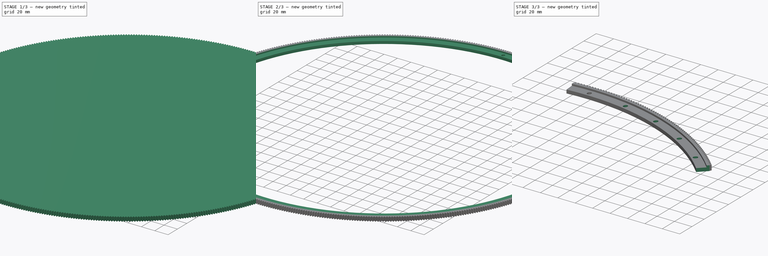
[diagram: build sequence overview — one tinted view per stage of 3, left to right]
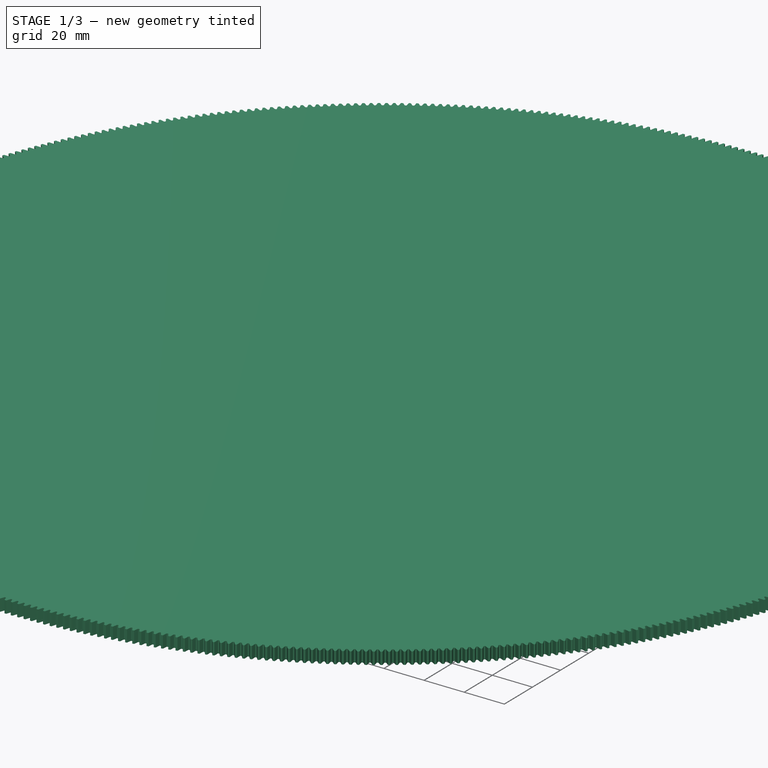
[diagram: stage 1 of 3 — iso view after this stage's code; geometry added in this stage tinted green]
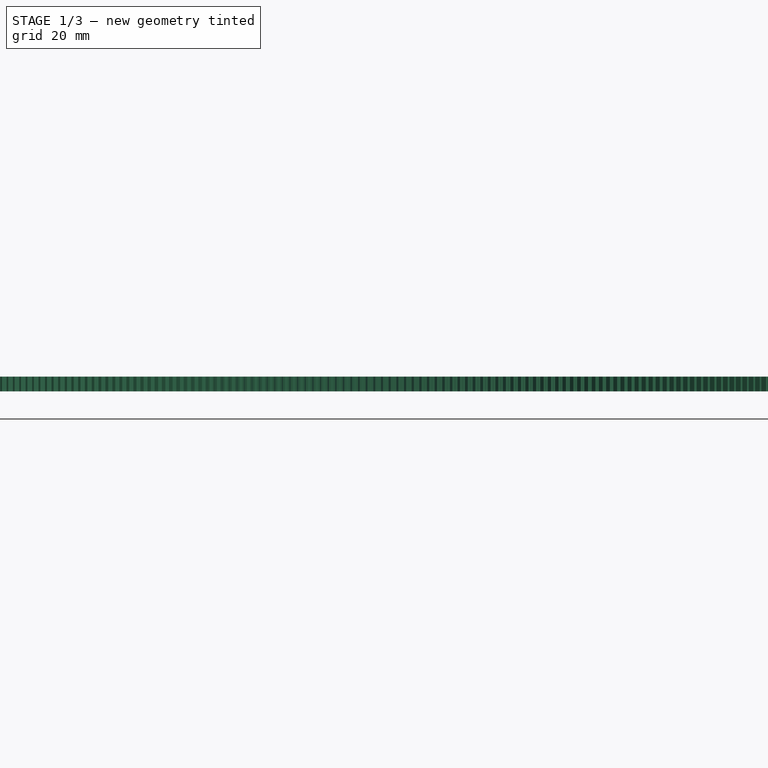
[diagram: stage 1 of 3 — front view after this stage's code; geometry added in this stage tinted green]
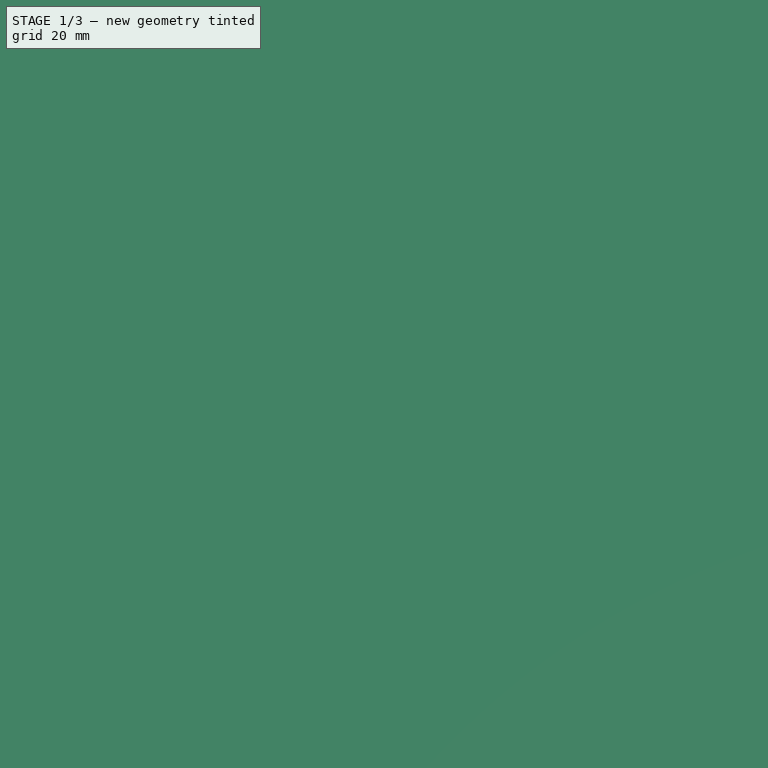
[diagram: stage 1 of 3 — top view after this stage's code; geometry added in this stage tinted green]
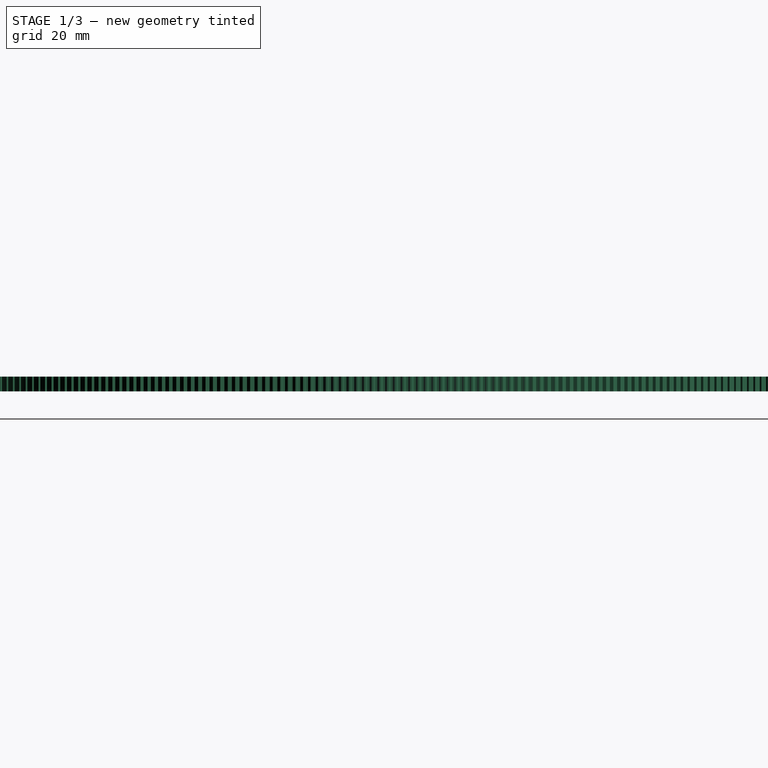
[diagram: stage 1 of 3 — right view after this stage's code; geometry added in this stage tinted green]
FCSTD DOCUMENT  (FreeCAD 2020.10.16R22739 +2665 (Git))
Label: wieniec_mod1
License: All rights reserved
objects: Sketcher::SketchObject×4, PartDesign::Pocket×4, Part::FeaturePython×1, PartDesign::FeatureBase×1, PartDesign::PolarPattern×1, PartDesign::Body×1
note: 22 computed .brp shape members not serialized (recipe doc carries the construction recipe); baked Part::Feature solids carry a one-line shape summary decoded from their .brp

FEATURE [Part::FeaturePython] involutegear  # WARN: FeaturePython — macro-defined, semantics opaque (R4)
  backlash = 0
  beta = 0
  clearance = 0.25
  double_helix = false
  dw = 528
  head = 0
  height = 6
  module = 1
  numpoints = 6
  pressure_angle = 20
  properties_from_tool = true
  reversed_backlash = false
  shift = 0
  simple = false
  teeth = 528
  transverse_pitch = 3.14159
  undercut = false
FEATURE [PartDesign::FeatureBase] BaseFeature
  BaseFeature = -> involutegear
  NewSolid = false
  Suppress = false
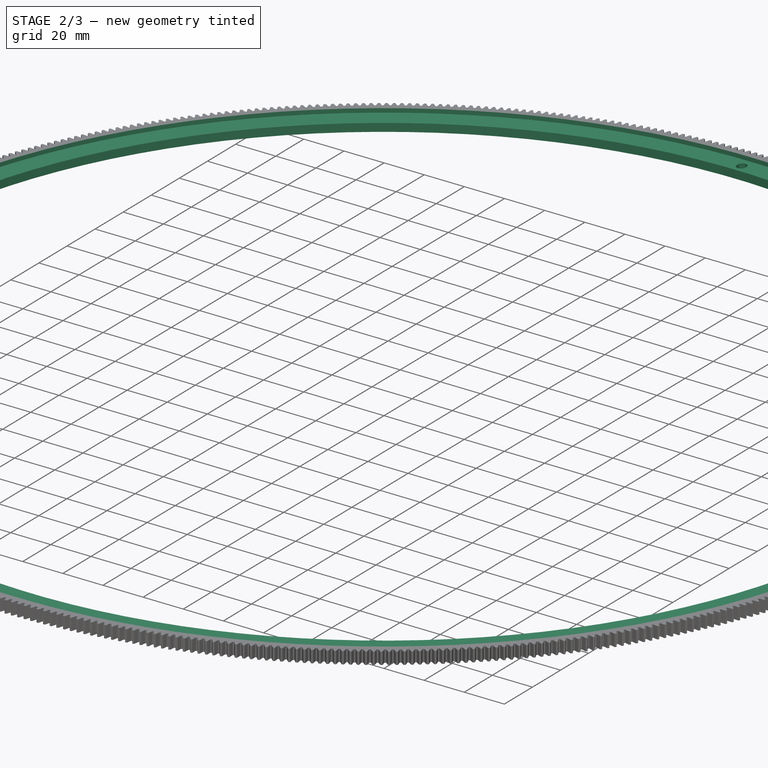
[diagram: stage 2 of 3 — iso view after this stage's code; geometry added in this stage tinted green]
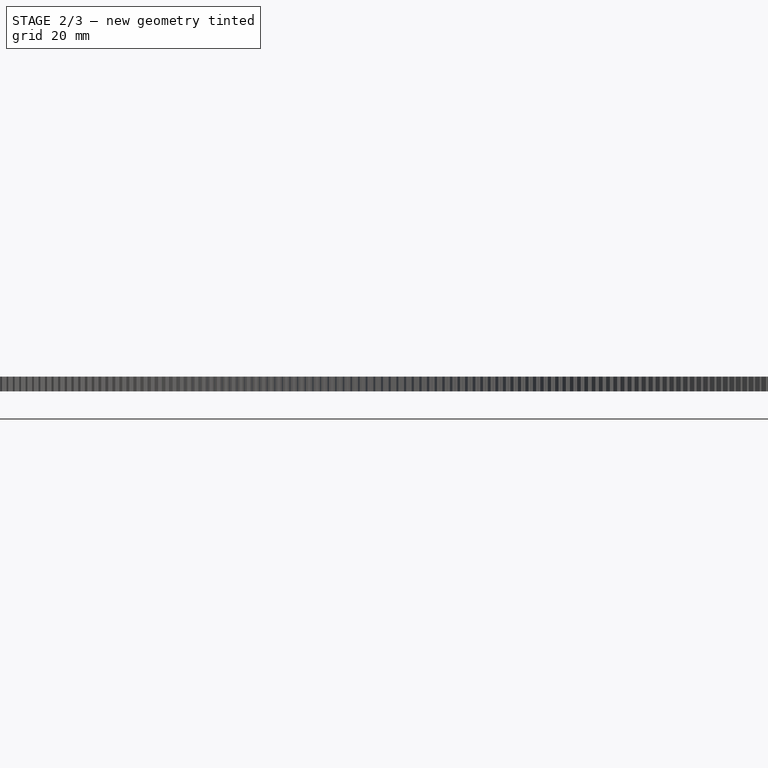
[diagram: stage 2 of 3 — front view after this stage's code; geometry added in this stage tinted green]
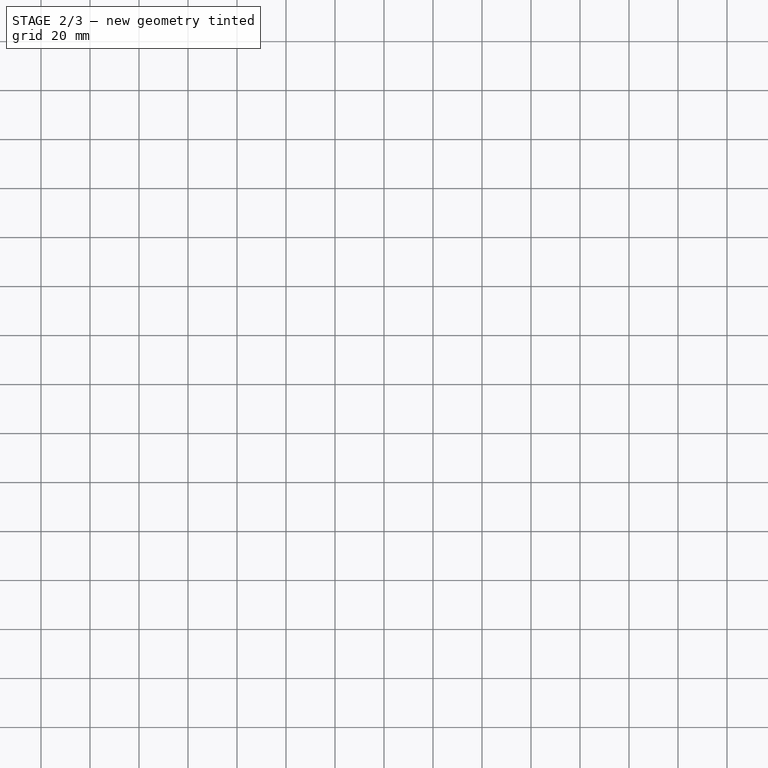
[diagram: stage 2 of 3 — top view after this stage's code; geometry added in this stage tinted green]
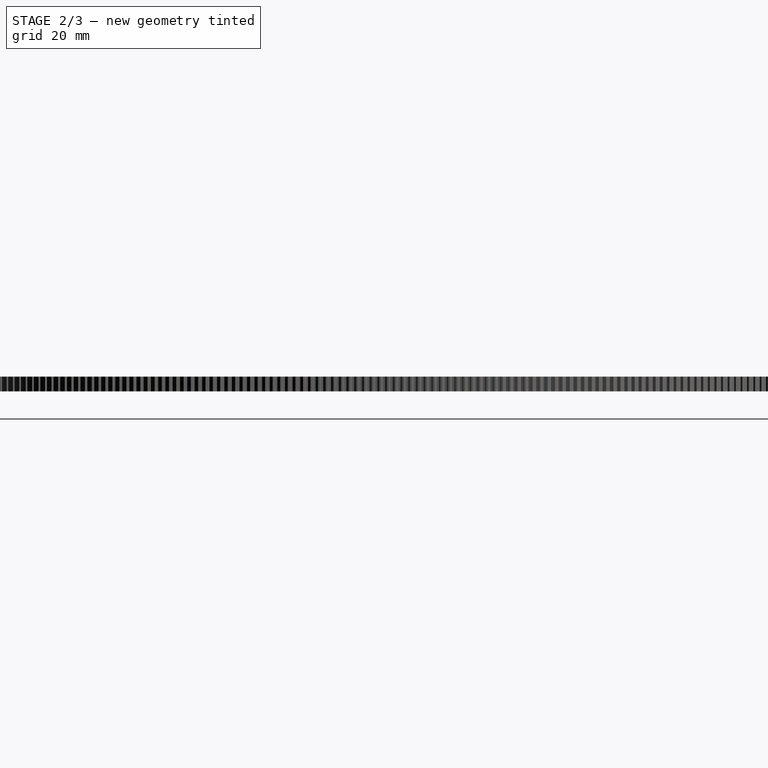
[diagram: stage 2 of 3 — right view after this stage's code; geometry added in this stage tinted green]
FEATURE [Sketcher::SketchObject] Sketch
  MapMode = 5
  Placement = pos=(0,0,6) rot=(0,0,1;0rad)
  Support = -> [BaseFeature]
  sketch-geometry (1):
    g0: Circle CenterX=0 CenterY=0 CenterZ=0 NormalX=0 NormalY=0 NormalZ=1 AngleXU=0 Radius=260
  constraints (2):
    c: Coincident(g0,g-1)
    c: Diameter(g0) = 520
FEATURE [PartDesign::Pocket] Pocket
  BaseFeature = -> BaseFeature
  ClaimChildren = false
  Length = 2
  Length2 = 100
  NewSolid = false
  Profile = -> Sketch
  Suppress = false
  Type = 0
FEATURE [Sketcher::SketchObject] Sketch001
  MapMode = 5
  Placement = pos=(0,0,4) rot=(0,0,1;0rad)
  Support = -> [Pocket]
  sketch-geometry (1):
    g0: Circle CenterX=0 CenterY=0 CenterZ=0 NormalX=0 NormalY=0 NormalZ=1 AngleXU=0 Radius=250
  constraints (2):
    c: Coincident(g0,g-1)
    c: Diameter(g0) = 500
FEATURE [PartDesign::Pocket] Pocket001
  BaseFeature = -> Pocket
  ClaimChildren = false
  Length = 5
  Length2 = 100
  NewSolid = false
  Profile = -> Sketch001
  Suppress = false
  Type = 1
FEATURE [Sketcher::SketchObject] Sketch002
  MapMode = 5
  Placement = pos=(0,0,4) rot=(0,0,1;0rad)
  Support = -> [Pocket001]
  sketch-geometry (4):
    g0: ArcOfCircle CenterX=0 CenterY=254 CenterZ=0 NormalX=0 NormalY=0 NormalZ=1 AngleXU=0 Radius=2.1 StartAngle=3.14159 EndAngle=6.28319
    g1: ArcOfCircle CenterX=2e-16 CenterY=255 CenterZ=0 NormalX=0 NormalY=0 NormalZ=1 AngleXU=0 Radius=2.1 StartAngle=4.6e-15 EndAngle=3.14159
    g2: LineSegment StartX=2.1 StartY=254 StartZ=0 EndX=2.1 EndY=255 EndZ=0
    g3: LineSegment StartX=-2.1 StartY=254 StartZ=0 EndX=-2.1 EndY=255 EndZ=0
  constraints (10):
    c: Tangent(g0,g3) = 1.5708
    c: Tangent(g0,g2) = -1.5708
    c: Tangent(g2,g1) = -1.5708
    c: Tangent(g3,g1) = 1.5708
    c: Vertical(g2)
    c: Equal(g0,g1)
    c: PointOnObject(g0,g-2)
    c: Diameter(g0) = 4.2
    c: DistanceY(g2,g2) = 1
    c: DistanceY(g0) = 254
FEATURE [PartDesign::Pocket] Pocket002
  BaseFeature = -> Pocket001
  ClaimChildren = false
  Length = 5
  Length2 = 100
  NewSolid = false
  Profile = -> Sketch002
  Suppress = false
  Type = 1
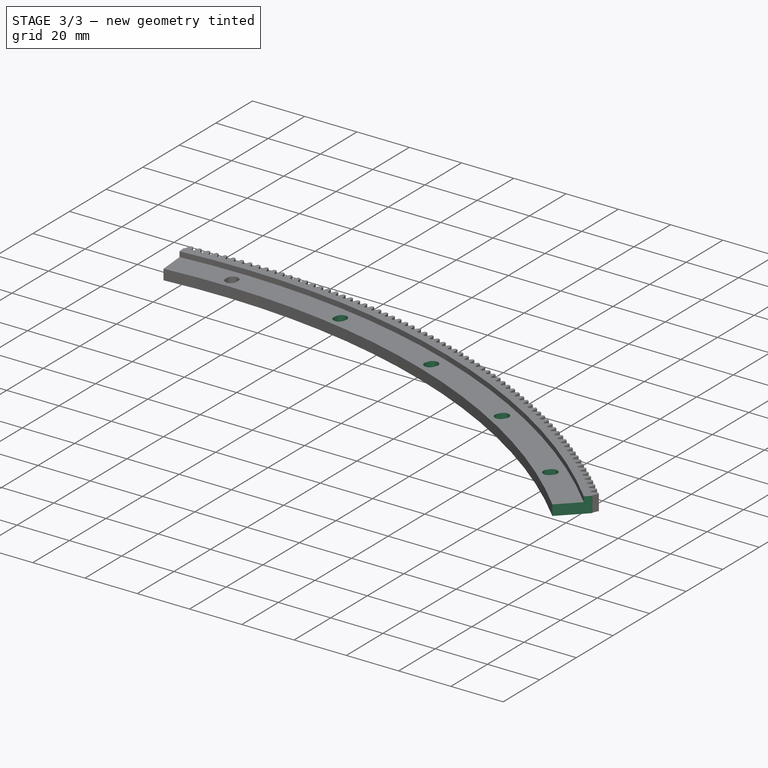
[diagram: stage 3 of 3 — iso view after this stage's code; geometry added in this stage tinted green]
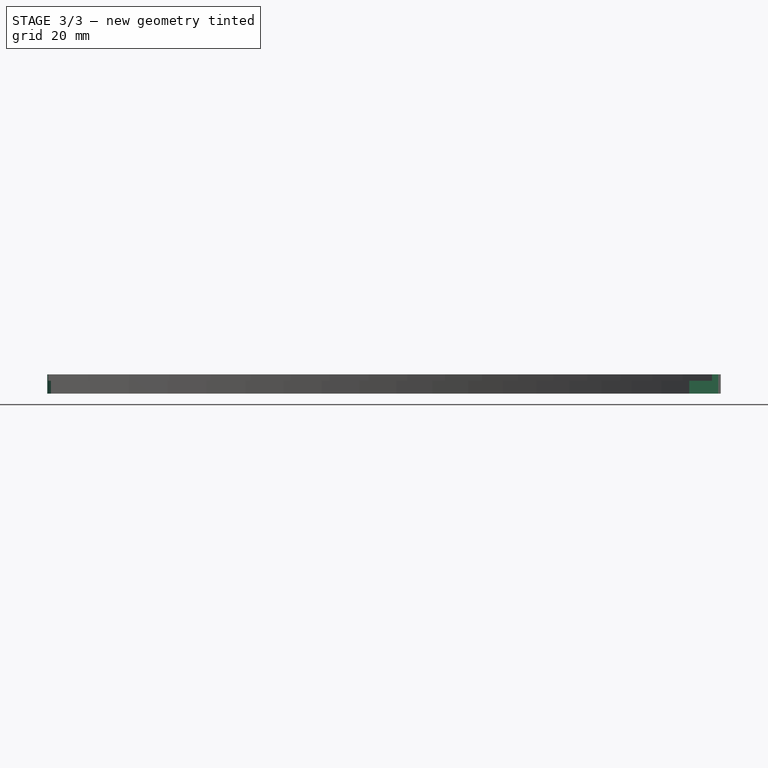
[diagram: stage 3 of 3 — front view after this stage's code; geometry added in this stage tinted green]
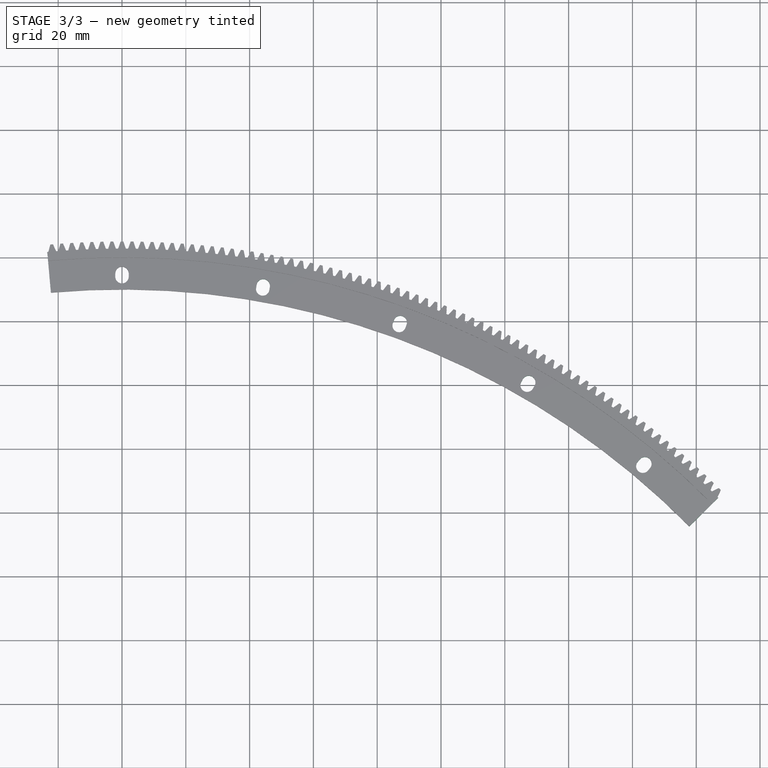
[diagram: stage 3 of 3 — top view after this stage's code; geometry added in this stage tinted green]
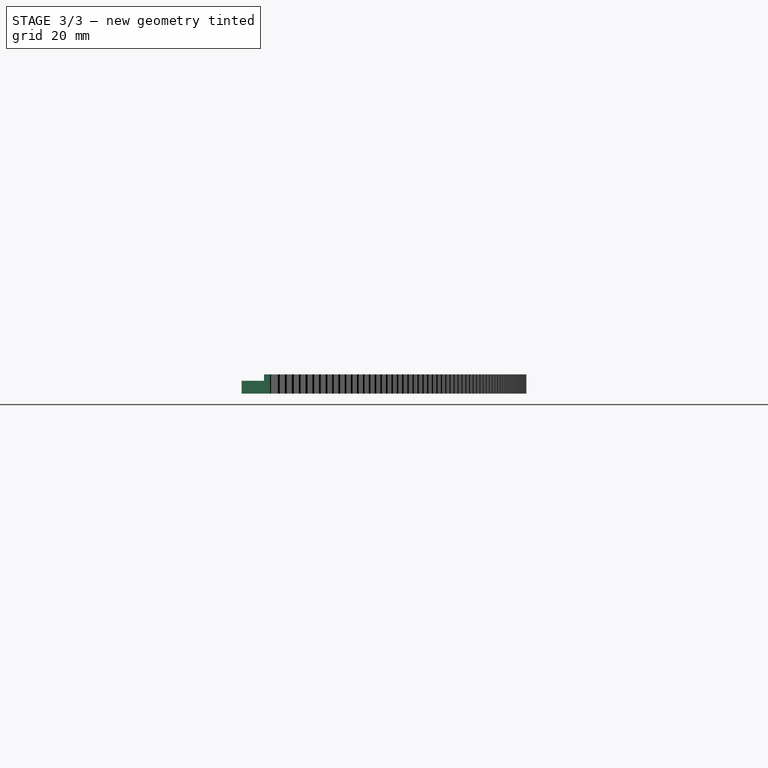
[diagram: stage 3 of 3 — right view after this stage's code; geometry added in this stage tinted green]
FEATURE [PartDesign::PolarPattern] PolarPattern
  Angle = 360
  Axis = -> Sketch002 [N_Axis]
  BaseFeature = -> Pocket002
  CopyShape = false
  NewSolid = false
  Occurrences = 36
  OriginalSubs = -> [Pocket002]
  Originals = -> [Pocket002]
  SubTransform = true
  Suppress = false
FEATURE [Sketcher::SketchObject] Sketch003
  MapMode = 5
  Placement = pos=(0,0,6) rot=(0,0,1;0rad)
  Support = -> [PolarPattern]
  sketch-geometry (3):
    g0: LineSegment StartX=-26.7392 StartY=298.806 StartZ=0 EndX=3.6e-15 EndY=0 EndZ=0
    g1: LineSegment StartX=0 StartY=0 StartZ=0 EndX=213.39 EndY=210.866 EndZ=0
    g2: ArcOfCircle CenterX=0 CenterY=0 CenterZ=0 NormalX=0 NormalY=0 NormalZ=1 AngleXU=0 Radius=300 StartAngle=1.66005 EndAngle=7.06263
  constraints (8):
    c: Coincident(g0,g-1)
    c: Coincident(g1,g0)
    c: Angle(g-2,g0) = 0.0892492
    c: Coincident(g2,g0)
    c: Coincident(g2,g0)
    c: Coincident(g2,g1)
    c: Distance(g0) = 300
    c: Angle(g1,g0) = 0.880597
FEATURE [PartDesign::Pocket] Pocket003
  BaseFeature = -> PolarPattern
  ClaimChildren = false
  Length = 5
  Length2 = 100
  NewSolid = false
  Profile = -> Sketch003
  Suppress = false
  Type = 1
FEATURE [PartDesign::Body] Body  label="wieniec"
  BaseFeature = -> involutegear
  ExportMode = 0
  Group = -> [BaseFeature,Sketch,Pocket,Sketch001,Pocket001,Sketch002,Pocket002,PolarPattern,Sketch003,Pocket003]
  Origin = -> Origin
  Tip = -> Pocket003
  _ExportChildren = -> [BaseFeature,Pocket,Pocket001,Pocket002,PolarPattern,Pocket003]
  _GroupVersion = 1
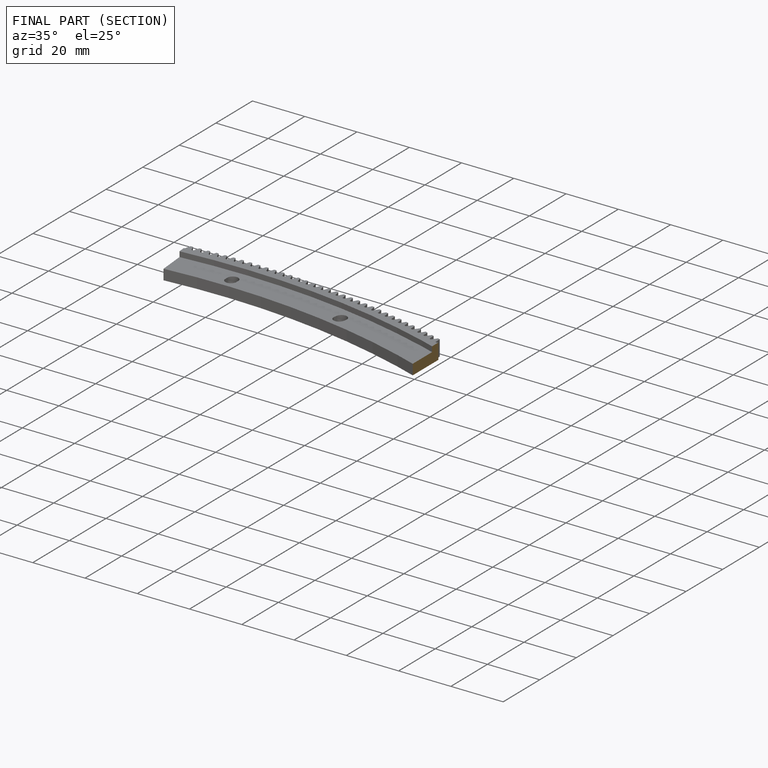
[diagram: finished part — half-section view (interior)]
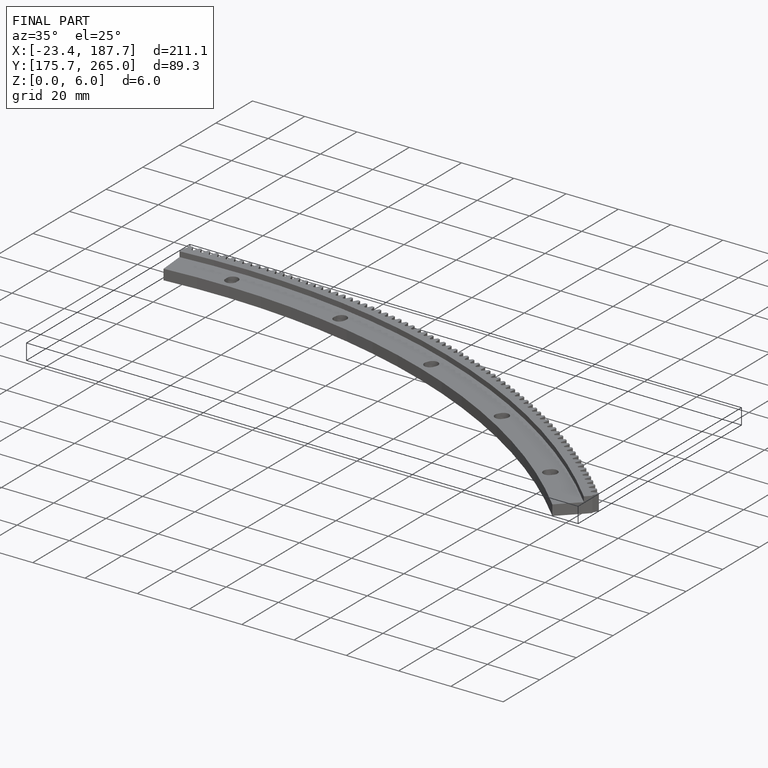
[diagram: finished part — iso view with bounding-box wireframe]
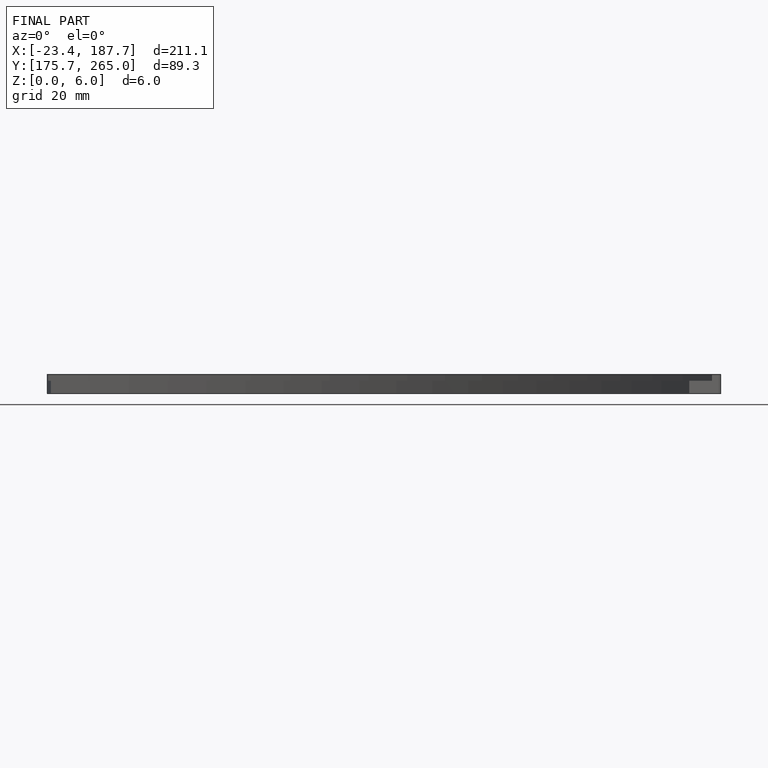
[diagram: finished part — front view with bounding-box wireframe]
